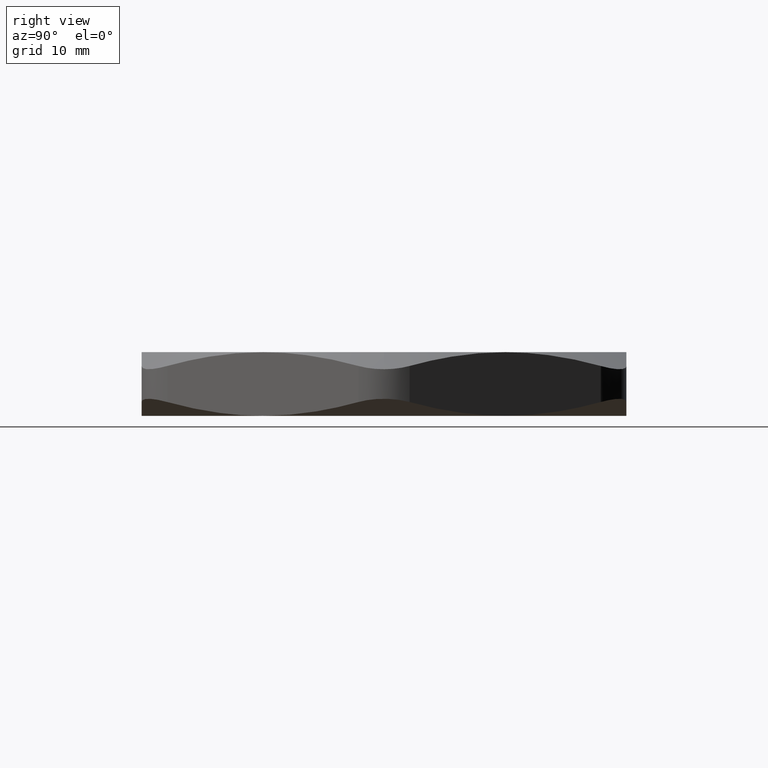
[diagram: clean part render]
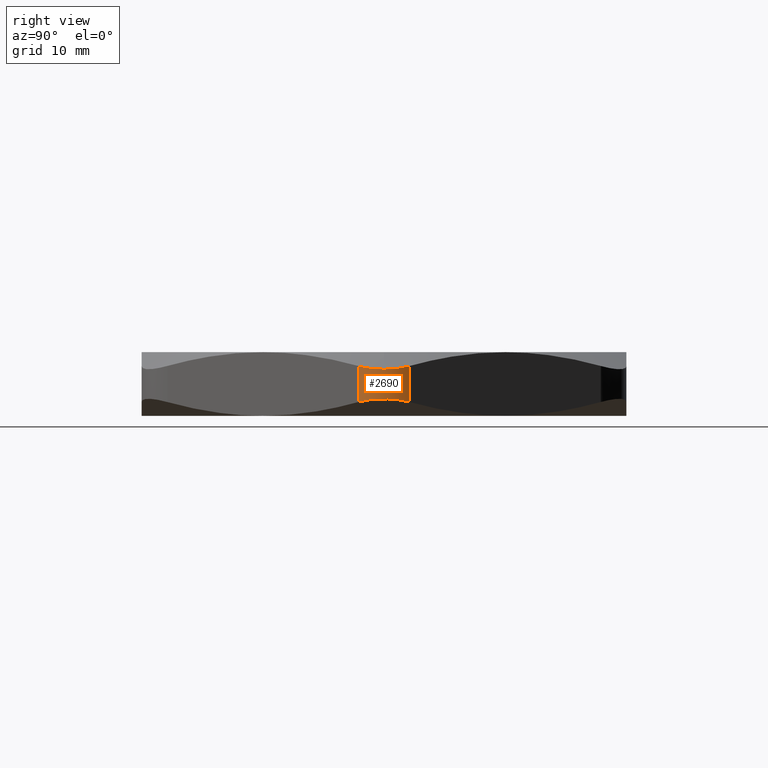
[diagram: same view with one face highlighted and labeled with its STEP entity id]
A machine part, right view. The second image highlights one B-rep face of the part: STEP entity #2690.
In plain terms, the highlighted cylindrical surface (partial cylindrical patch) has radius 6.35 mm, axis along (0, 0, -1).
Its self-contained STEP definition (entity closure, byte-faithful):
#47 = VERTEX_POINT ( 'NONE', #433 ) ;
#71 = VERTEX_POINT ( 'NONE', #501 ) ;
#110 = EDGE_CURVE ( 'NONE', #71, #47, #552, .T. ) ;
#317 = EDGE_CURVE ( 'NONE', #47, #318, #1004, .T. ) ;
#318 = VERTEX_POINT ( 'NONE', #1000 ) ;
#334 = VERTEX_POINT ( 'NONE', #1077 ) ;
#337 = EDGE_CURVE ( 'NONE', #334, #338, #1070, .T. ) ;
#338 = VERTEX_POINT ( 'NONE', #1066 ) ;
#433 = CARTESIAN_POINT ( 'NONE',  ( 1.290377851638813800, 0.1250000000000005600, 0.2427859541343048200 ) ) ;
#501 = CARTESIAN_POINT ( 'NONE',  ( 1.323871500692704200, -1.232579635649854100E-024, 0.2269357503463523600 ) ) ;
#541 = CARTESIAN_POINT ( 'NONE',  ( 1.290377851638813800, 0.1250000000000005600, 0.2427859541343048200 ) ) ;
#542 = CARTESIAN_POINT ( 'NONE',  ( 1.301163024300265600, 0.1063195329819648800, 0.2376280449449059700 ) ) ;
#543 = CARTESIAN_POINT ( 'NONE',  ( 1.309608273902645100, 0.08602256121026848100, 0.2336403273867143600 ) ) ;
#544 = CARTESIAN_POINT ( 'NONE',  ( 1.318085377249127900, 0.05456655859989955500, 0.2296491859462561100 ) ) ;
#545 = CARTESIAN_POINT ( 'NONE',  ( 1.320238384401354500, 0.04387041525387970500, 0.2286388179600903900 ) ) ;
#546 = CARTESIAN_POINT ( 'NONE',  ( 1.323141469423209300, 0.02203945126250702500, 0.2272774143254680500 ) ) ;
#547 = CARTESIAN_POINT ( 'NONE',  ( 1.323871500692704200, 0.01095095147729041600, 0.2269357503463522700 ) ) ;
#548 = CARTESIAN_POINT ( 'NONE',  ( 1.323871500692704200, -1.232579635649854100E-024, 0.2269357503463523600 ) ) ;
#552 = B_SPLINE_CURVE_WITH_KNOTS ( 'NONE', 3,
 ( #548, #547, #546, #545, #544, #543, #542, #541 ),
 .UNSPECIFIED., .F., .F.,
 ( 4, 2, 2, 4 ),
 ( 0.003343581398575291700, 0.004176957635011798600, 0.005010333871448306400, 0.006677086344321321100 ),
 .UNSPECIFIED. ) ;
#1000 = CARTESIAN_POINT ( 'NONE',  ( 1.290377851638813800, 0.1250000000000008000, 0.06721404586569518200 ) ) ;
#1001 = DIRECTION ( 'NONE',  ( 0.0000000000000000000, 0.0000000000000000000, -1.000000000000000000 ) ) ;
#1002 = VECTOR ( 'NONE', #1001, 39.37007874015748100 ) ;
#1003 = CARTESIAN_POINT ( 'NONE',  ( 1.290377851638813800, 0.1250000000000005600, 0.3100000000000000000 ) ) ;
#1004 = LINE ( 'NONE', #1003, #1002 ) ;
#1066 = CARTESIAN_POINT ( 'NONE',  ( 1.290377851638813800, -0.1249999999999994600, 0.2427859541343049500 ) ) ;
#1067 = DIRECTION ( 'NONE',  ( 0.0000000000000000000, 0.0000000000000000000, 1.000000000000000000 ) ) ;
#1068 = VECTOR ( 'NONE', #1067, 39.37007874015748100 ) ;
#1069 = CARTESIAN_POINT ( 'NONE',  ( 1.290377851638813800, -0.1249999999999993500, 0.3100000000000000000 ) ) ;
#1070 = LINE ( 'NONE', #1069, #1068 ) ;
#1077 = CARTESIAN_POINT ( 'NONE',  ( 1.290377851638813800, -0.1249999999999994000, 0.06721404586569511300 ) ) ;
#1518 = CARTESIAN_POINT ( 'NONE',  ( 1.323871500692704200, -1.232579635649854100E-024, 0.2269357503463523600 ) ) ;
#1519 = CARTESIAN_POINT ( 'NONE',  ( 1.323871500692704700, -0.01098405379685869400, 0.2269357503463523300 ) ) ;
#1520 = CARTESIAN_POINT ( 'NONE',  ( 1.323150731314134000, -0.02191688359895170900, 0.2272730796241369000 ) ) ;
#1521 = CARTESIAN_POINT ( 'NONE',  ( 1.320270611761772200, -0.04368023203091903800, 0.2286236963736372800 ) ) ;
#1522 = CARTESIAN_POINT ( 'NONE',  ( 1.318082992759608700, -0.05459731993352143200, 0.2296502803749607100 ) ) ;
#1523 = CARTESIAN_POINT ( 'NONE',  ( 1.309510802919501100, -0.08634002578141483600, 0.2336862750730249500 ) ) ;
#1524 = CARTESIAN_POINT ( 'NONE',  ( 1.301193061145003800, -0.1062675076407761400, 0.2376136801013971300 ) ) ;
#1525 = CARTESIAN_POINT ( 'NONE',  ( 1.290377851638813800, -0.1249999999999994600, 0.2427859541343049500 ) ) ;
#1528 = B_SPLINE_CURVE_WITH_KNOTS ( 'NONE', 3,
 ( #1525, #1524, #1523, #1522, #1521, #1520, #1519, #1518 ),
 .UNSPECIFIED., .F., .F.,
 ( 4, 2, 2, 4 ),
 ( 4.336808689942017700E-019, 0.001671790699287646100, 0.002507686048931469000, 0.003343581398575291700 ),
 .UNSPECIFIED. ) ;
#1677 = B_SPLINE_CURVE_WITH_KNOTS ( 'NONE', 3,
 ( #1740, #1739, #1738, #1737, #1736, #1735, #1734, #1733, #1732, #1731, #1730, #1729, #1728, #1727 ),
 .UNSPECIFIED., .F., .F.,
 ( 4, 2, 2, 2, 2, 2, 4 ),
 ( 5.275955480050202700E-018, 0.001669271586080334000, 0.002503907379120498500, 0.003338543172160664000, 0.004173178965200828600, 0.005007814758240994500, 0.006677086344321322800 ),
 .UNSPECIFIED. ) ;
#1727 = CARTESIAN_POINT ( 'NONE',  ( 1.290377851638813800, -0.1249999999999994000, 0.06721404586569511300 ) ) ;
#1728 = CARTESIAN_POINT ( 'NONE',  ( 1.301179324903585700, -0.1062912995088177700, 0.07237975066804343300 ) ) ;
#1729 = CARTESIAN_POINT ( 'NONE',  ( 1.309633521215260100, -0.08596173029005470300, 0.07637160150552659000 ) ) ;
#1730 = CARTESIAN_POINT ( 'NONE',  ( 1.318111162438620100, -0.05445433847798820900, 0.08036293289793396100 ) ) ;
#1731 = CARTESIAN_POINT ( 'NONE',  ( 1.320262292194870100, -0.04374042279998497500, 0.08137240177445212400 ) ) ;
#1732 = CARTESIAN_POINT ( 'NONE',  ( 1.323156963948952900, -0.02187246060466793400, 0.08272984357175627900 ) ) ;
#1733 = CARTESIAN_POINT ( 'NONE',  ( 1.323880134261622200, -0.01076827507157195200, 0.08306829295617816600 ) ) ;
#1734 = CARTESIAN_POINT ( 'NONE',  ( 1.323862709342718400, 0.01116549169178971700, 0.08306013245854929100 ) ) ;
#1735 = CARTESIAN_POINT ( 'NONE',  ( 1.323135509530177600, 0.02208131324083322700, 0.08271979029129186700 ) ) ;
#1736 = CARTESIAN_POINT ( 'NONE',  ( 1.320246686176114800, 0.04381094011982428900, 0.08136507564973539900 ) ) ;
#1737 = CARTESIAN_POINT ( 'NONE',  ( 1.318056817555447500, 0.05471080628804197300, 0.08033741714334205500 ) ) ;
#1738 = CARTESIAN_POINT ( 'NONE',  ( 1.309485597971105300, 0.08640001358719516500, 0.07630181465680792300 ) ) ;
#1739 = CARTESIAN_POINT ( 'NONE',  ( 1.301176764405754100, 0.1062957344211560600, 0.07237852613360956600 ) ) ;
#1740 = CARTESIAN_POINT ( 'NONE',  ( 1.290377851638813800, 0.1250000000000008000, 0.06721404586569518200 ) ) ;
#1747 = DIRECTION ( 'NONE',  ( -1.000000000000000000, 0.0000000000000000000, 0.0000000000000000000 ) ) ;
#1748 = DIRECTION ( 'NONE',  ( 0.0000000000000000000, 0.0000000000000000000, -1.000000000000000000 ) ) ;
#1749 = CARTESIAN_POINT ( 'NONE',  ( 1.073871500692704200, 5.292955487724510400E-016, 0.3100000000000000000 ) ) ;
#1750 = AXIS2_PLACEMENT_3D ( 'NONE', #1749, #1748, #1747 ) ;
#1752 = CYLINDRICAL_SURFACE ( 'NONE', #1750, 0.2499999999999999200 ) ;
#1753 = FACE_OUTER_BOUND ( 'NONE', #2685, .T. ) ;
#2589 = EDGE_CURVE ( 'NONE', #338, #71, #1528, .T. ) ;
#2652 = EDGE_CURVE ( 'NONE', #318, #334, #1677, .T. ) ;
#2681 = ORIENTED_EDGE ( 'NONE', *, *, #2652, .F. ) ;
#2683 = ORIENTED_EDGE ( 'NONE', *, *, #317, .F. ) ;
#2685 = EDGE_LOOP ( 'NONE', ( #2695, #2698, #2681, #2683, #2696 ) ) ;
#2690 = ADVANCED_FACE ( 'NONE', ( #1753 ), #1752, .T. ) ;
#2695 = ORIENTED_EDGE ( 'NONE', *, *, #2589, .F. ) ;
#2696 = ORIENTED_EDGE ( 'NONE', *, *, #110, .F. ) ;
#2698 = ORIENTED_EDGE ( 'NONE', *, *, #337, .F. ) ;